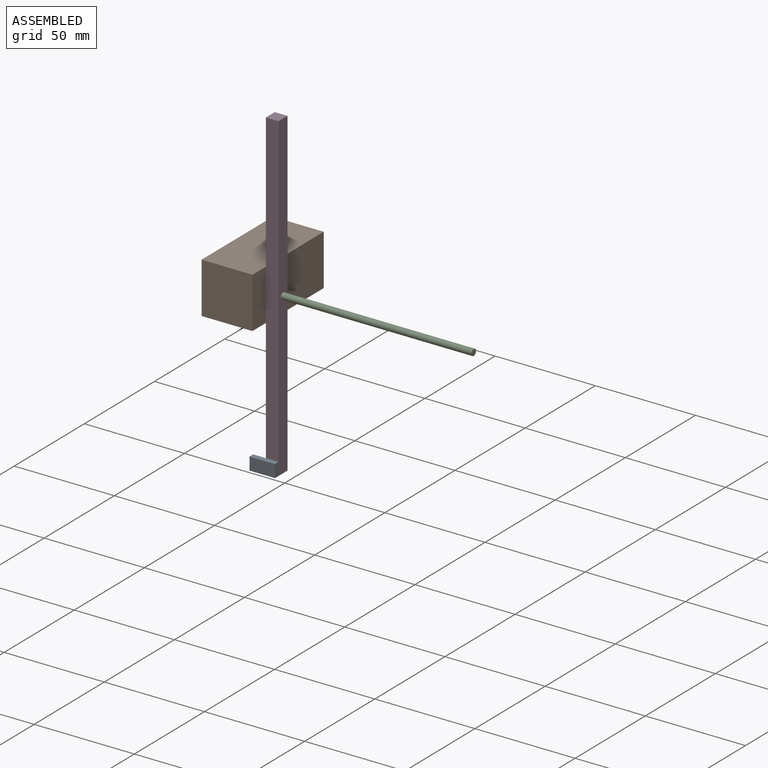
[diagram: assembled view]
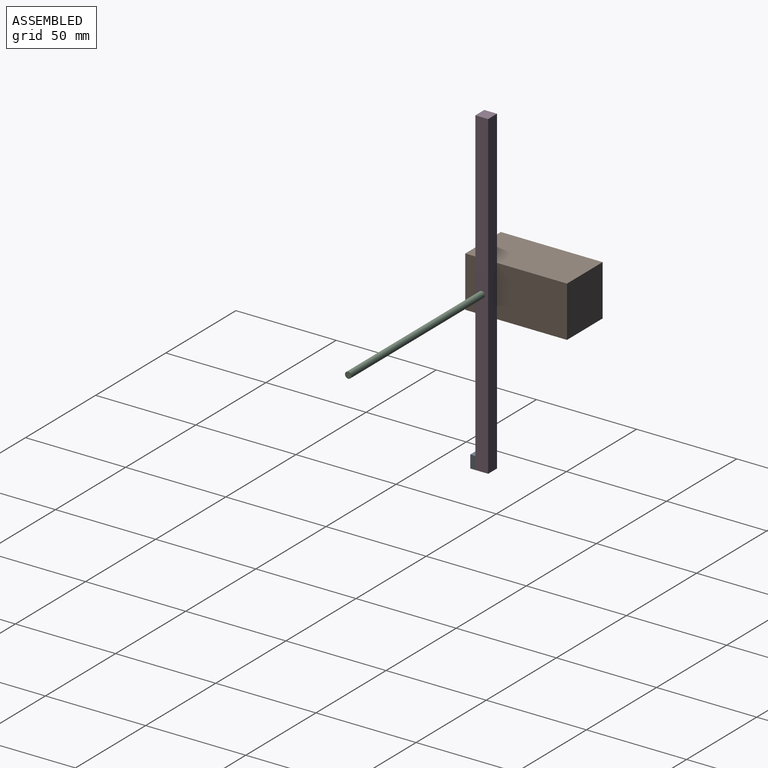
[diagram: assembled view, second angle]
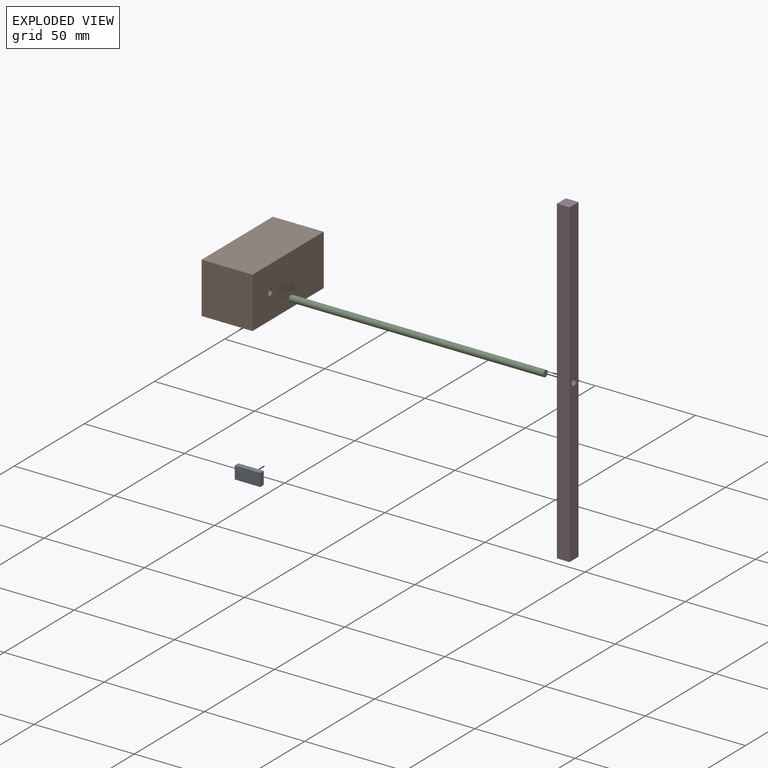
[diagram: exploded view]
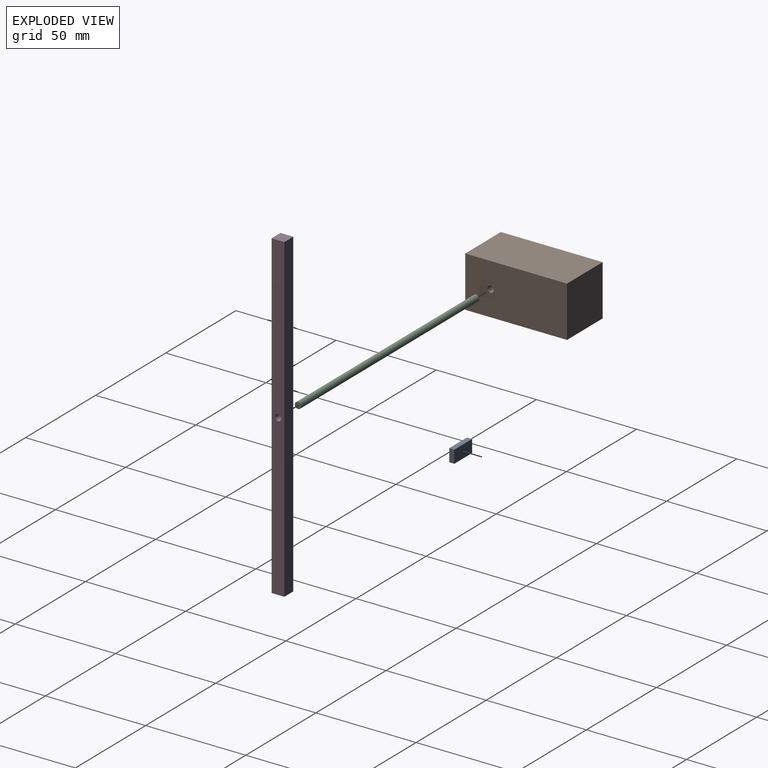
[diagram: exploded view, second angle]
ASSEMBLY  parts=4 mates=3
PART A: 6 faces, bbox 6.4x2.5x12.7 mm
  f0: plane 12.7x2.54mm, normal (-1,0,0), area 32.3mm2, adj f1,f3,f4,f5
  f1: plane 6.35x2.54mm, normal (0,0,-1), area 16.1mm2, adj f0,f2,f4,f5
  f2: plane 12.7x2.54mm, normal (1,0,0), area 32.3mm2, adj f1,f3,f4,f5
  f3: plane 6.35x2.54mm, normal (0,0,1), area 16.1mm2, adj f0,f2,f4,f5
  f4: plane 12.7x6.35mm, normal (0,-1,0), area 80.6mm2, adj f0,f1,f2,f3
  f5: plane 12.7x6.35mm, normal (0,1,0), area 80.6mm2, adj f0,f1,f2,f3
PART B: 7 faces, bbox 50.8x25.4x25.4 mm
  f0: plane 25.4x25.4mm, normal (-1,0,0), area 645.2mm2, adj f1,f3,f5,f6
  f1: plane 50.8x25.4mm, normal (0,0,-1), area 1290.3mm2, adj f0,f2,f5,f6
  f2: plane 25.4x25.4mm, normal (1,0,0), area 645.2mm2, adj f1,f3,f5,f6
  f3: plane 50.8x25.4mm, normal (0,0,1), area 1290.3mm2, adj f0,f2,f5,f6
  f4: cylinder r=1.6mm len=25.4mm, axis (0,1,0), area 255.4mm2, adj f5,f6
  f5: plane 50.8x25.4mm, normal (0,-1,0), area 1282.3mm2, adj f0,f1,f2,f3,f4
  f6: plane 50.8x25.4mm, normal (0,1,0), area 1282.3mm2, adj f0,f1,f2,f3,f4
PART C: 3 faces, bbox 127x3.2x3.2 mm
  f0: cylinder r=1.59mm len=127mm, axis (-1,0,0), area 1266.8mm2, adj f1,f2
  f1: plane 3.18x3.18mm, normal (1,0,0), area 7.9mm2, adj f0
  f2: plane 3.18x3.18mm, normal (-1,0,0), area 7.9mm2, adj f0
PART D: 7 faces, bbox 6.4x6.4x160 mm
  f0: plane 160.02x6.35mm, normal (-1,0,0), area 1016.1mm2, adj f1,f3,f5,f6
  f1: plane 6.36x6.35mm, normal (0,0,-1), area 40.4mm2, adj f0,f2,f5,f6
  f2: plane 160.02x6.35mm, normal (1,0,0), area 1016.1mm2, adj f1,f3,f5,f6
  f3: plane 6.36x6.35mm, normal (0,0,1), area 40.4mm2, adj f0,f2,f5,f6
  f4: cylinder r=1.59mm len=6.35mm, axis (0,1,0), area 63.3mm2, adj f5,f6
  f5: plane 160.02x6.36mm, normal (0,-1,0), area 1010.2mm2, adj f0,f1,f2,f3,f4
  f6: plane 160.02x6.36mm, normal (0,1,0), area 1010.2mm2, adj f0,f1,f2,f3,f4
PLACE A rot(axis=(0,1,0),90deg) t=(-12.87,24.47,38.27)mm
PLACE B rot(axis=(0.71,-0.71,0),180deg) t=(-31.92,65.75,124.63)mm
PLACE C t=(-31.92,27.65,111.93)mm
PLACE D rot(axis=(-0.71,-0.71,0),180deg) t=(-0.17,24.47,191.94)mm
MATE fastened A.f5 <-> D.f0  axis (0,1,0) through (-0.17,24.47,31.92)mm
MATE revolute B.f4 <-> C.f0  axis (-1,0,0) through (-31.92,27.65,111.93)mm
MATE fastened D.f4 <-> B.f4  axis (-1,0,0) through (-6.52,27.65,111.93)mm
